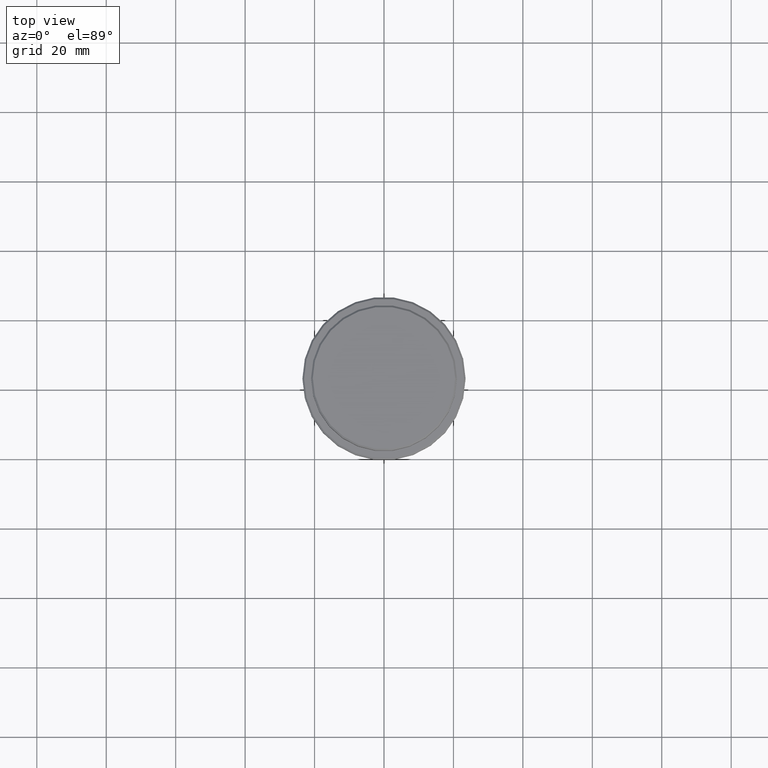
[diagram: clean part render]
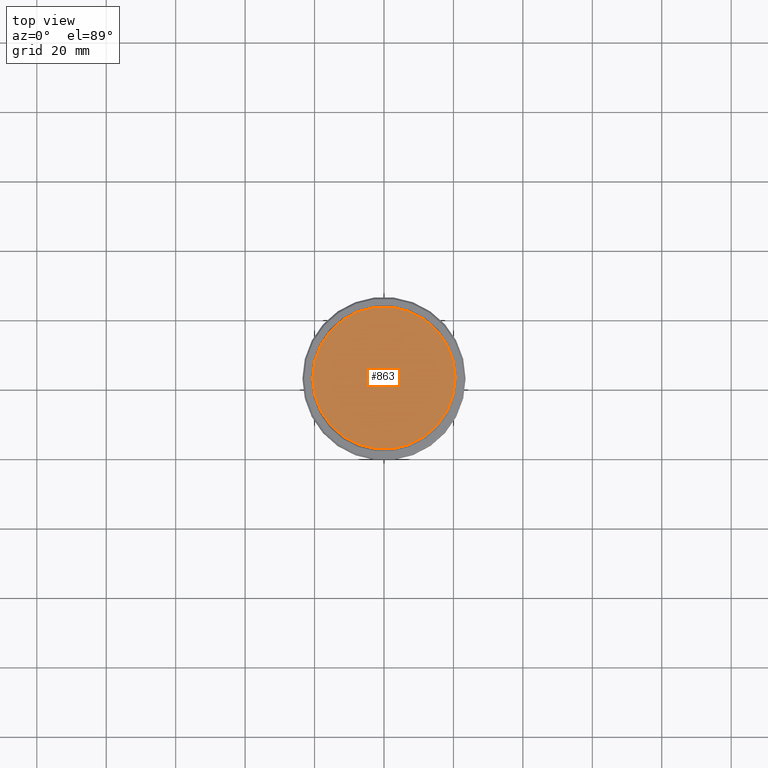
[diagram: same view with one face highlighted and labeled with its STEP entity id]
A machine part, top view. The second image highlights one B-rep face of the part: STEP entity #863.
In plain terms, the highlighted planar face has unit normal (0, -0, 1).
Its self-contained STEP definition (entity closure, byte-faithful):
#192 = DIRECTION ( 'NONE',  ( 1.000000000000000000, 0.000000000000000000, 0.000000000000000000 ) ) ;
#287 = VERTEX_POINT ( 'NONE', #1041 ) ;
#299 = PLANE ( 'NONE',  #307 ) ;
#307 = AXIS2_PLACEMENT_3D ( 'NONE', #1188, #1170, #192 ) ;
#326 = CARTESIAN_POINT ( 'NONE',  ( -20.50000000000001776, 0.000000000000000000, 0.000000000000000000 ) ) ;
#360 = VERTEX_POINT ( 'NONE', #326 ) ;
#449 = CARTESIAN_POINT ( 'NONE',  ( 0.000000000000000000, 0.000000000000000000, 0.000000000000000000 ) ) ;
#496 = DIRECTION ( 'NONE',  ( -0.000000000000000000, -0.000000000000000000, 1.000000000000000000 ) ) ;
#585 = EDGE_CURVE ( 'NONE', #287, #360, #608, .T. ) ;
#599 = DIRECTION ( 'NONE',  ( 1.000000000000000000, 0.000000000000000000, 0.000000000000000000 ) ) ;
#608 = CIRCLE ( 'NONE', #739, 20.50000000000001776 ) ;
#626 = FACE_OUTER_BOUND ( 'NONE', #949, .T. ) ;
#687 = EDGE_CURVE ( 'NONE', #360, #287, #1286, .T. ) ;
#739 = AXIS2_PLACEMENT_3D ( 'NONE', #449, #496, #1103 ) ;
#863 = ADVANCED_FACE ( 'NONE', ( #626 ), #299, .T. ) ;
#949 = EDGE_LOOP ( 'NONE', ( #977, #1092 ) ) ;
#977 = ORIENTED_EDGE ( 'NONE', *, *, #687, .T. ) ;
#1021 = DIRECTION ( 'NONE',  ( -0.000000000000000000, -0.000000000000000000, 1.000000000000000000 ) ) ;
#1041 = CARTESIAN_POINT ( 'NONE',  ( 20.50000000000001776, 2.541142108230759057E-15, 0.000000000000000000 ) ) ;
#1042 = CARTESIAN_POINT ( 'NONE',  ( 0.000000000000000000, 0.000000000000000000, 0.000000000000000000 ) ) ;
#1092 = ORIENTED_EDGE ( 'NONE', *, *, #585, .T. ) ;
#1103 = DIRECTION ( 'NONE',  ( 1.000000000000000000, 0.000000000000000000, 0.000000000000000000 ) ) ;
#1170 = DIRECTION ( 'NONE',  ( 0.000000000000000000, -0.000000000000000000, 1.000000000000000000 ) ) ;
#1188 = CARTESIAN_POINT ( 'NONE',  ( 0.000000000000000000, 0.000000000000000000, 0.000000000000000000 ) ) ;
#1286 = CIRCLE ( 'NONE', #1403, 20.50000000000001776 ) ;
#1403 = AXIS2_PLACEMENT_3D ( 'NONE', #1042, #1021, #599 ) ;